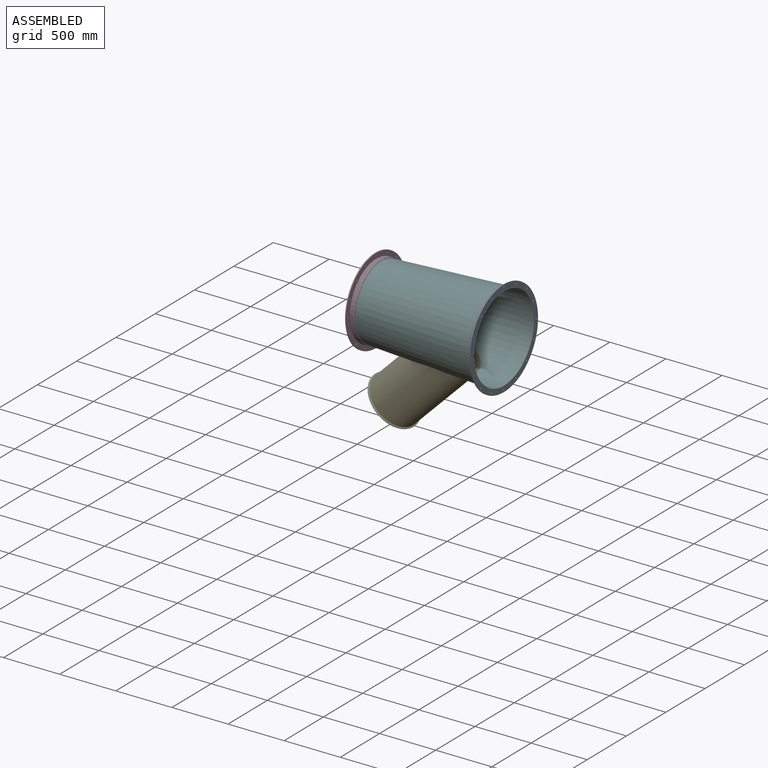
[diagram: assembled view]
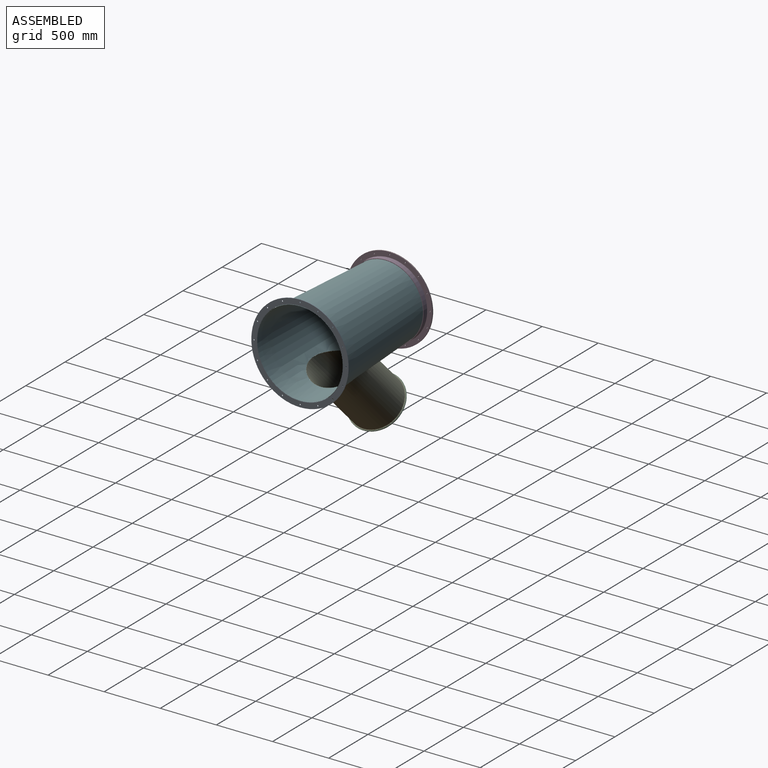
[diagram: assembled view, second angle]
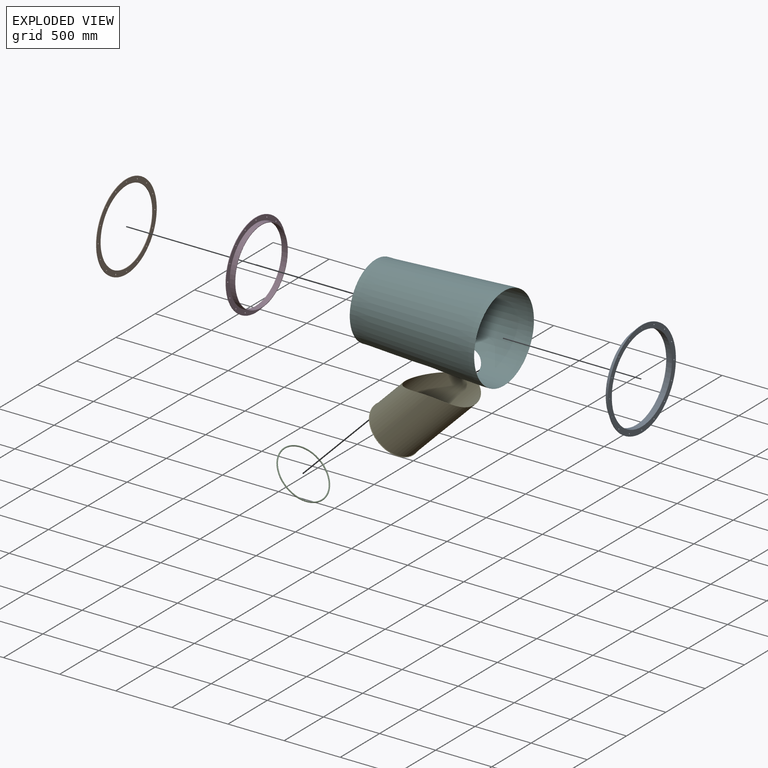
[diagram: exploded view]
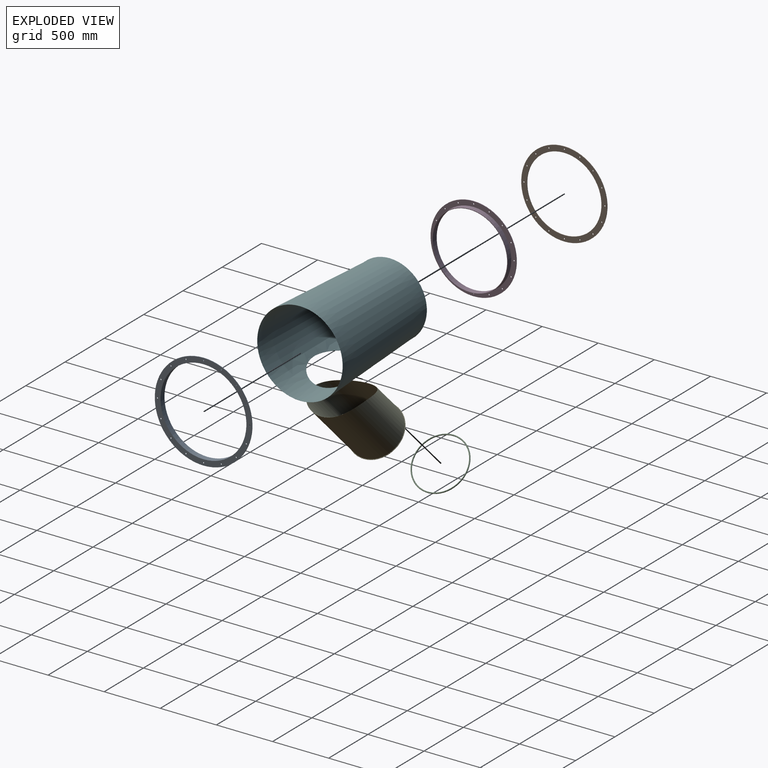
[diagram: exploded view, second angle]
ASSEMBLY  parts=6 mates=4
PART A: 22 faces, bbox 866.9x50.8x866.9 mm
  f0: cylinder r=5.56mm len=11.11mm, axis (0,1,0), area 166.3mm2, adj f17,f18
  f1: cylinder r=5.56mm len=11.11mm, axis (0,1,0), area 166.3mm2, adj f17,f18
  f2: cylinder r=5.56mm len=11.11mm, axis (0,1,0), area 166.3mm2, adj f17,f18
  f3: cylinder r=5.56mm len=11.11mm, axis (0,1,0), area 166.3mm2, adj f17,f18
  f4: cylinder r=5.56mm len=11.11mm, axis (0,1,0), area 166.3mm2, adj f17,f18
  f5: cylinder r=5.56mm len=11.11mm, axis (0,1,0), area 166.3mm2, adj f17,f18
  f6: cylinder r=5.56mm len=11.11mm, axis (0,1,0), area 166.3mm2, adj f17,f18
  f7: cylinder r=5.56mm len=11.11mm, axis (0,1,0), area 166.3mm2, adj f17,f18
  f8: cylinder r=5.56mm len=11.11mm, axis (0,1,0), area 166.3mm2, adj f17,f18
  f9: cylinder r=5.56mm len=11.11mm, axis (0,1,0), area 166.3mm2, adj f17,f18
  f10: cylinder r=5.56mm len=11.11mm, axis (0,1,0), area 166.3mm2, adj f17,f18
  f11: cylinder r=5.56mm len=11.11mm, axis (0,1,0), area 166.3mm2, adj f17,f18
  f12: cylinder r=5.56mm len=11.11mm, axis (0,1,0), area 166.3mm2, adj f17,f18
  f13: cylinder r=5.56mm len=11.11mm, axis (0,1,0), area 166.3mm2, adj f17,f18
  f14: cylinder r=5.56mm len=11.11mm, axis (0,1,0), area 166.3mm2, adj f17,f18
  f15: cylinder r=5.56mm len=11.11mm, axis (0,1,0), area 166.3mm2, adj f17,f18
  f16: cylinder r=433.45mm len=866.9mm, axis (0,1,0), area 12970.4mm2, adj f17,f18
  f17: plane 866.9x866.9mm, normal (0,-1,0), area 117170.7mm2, adj f0,f1,f2,f3,f4,f5,f6,f7
  f18: plane 866.9x866.9mm, normal (0,1,0), area 128692.3mm2, adj f0,f1,f2,f3,f4,f5,f6,f7
  f19: cylinder r=382.65mm len=765.3mm, axis (0,1,0), area 122136.8mm2, adj f18,f21
  f20: cylinder r=387.41mm len=774.83mm, axis (0,1,0), area 112064.1mm2, adj f17,f21
  f21: plane 774.83x774.83mm, normal (0,-1,0), area 11521.6mm2, adj f19,f20
PART B: 20 faces, bbox 765.3x765.3x4.8 mm
  f0: cylinder r=5.56mm len=11.11mm, axis (0,0,-1), area 166.3mm2, adj f18,f19
  f1: cylinder r=5.56mm len=11.11mm, axis (0,0,-1), area 166.3mm2, adj f18,f19
  f2: cylinder r=5.56mm len=11.11mm, axis (0,0,-1), area 166.3mm2, adj f18,f19
  f3: cylinder r=5.56mm len=11.11mm, axis (0,0,-1), area 166.3mm2, adj f18,f19
  f4: cylinder r=5.56mm len=11.11mm, axis (0,0,-1), area 166.3mm2, adj f18,f19
  f5: cylinder r=5.56mm len=11.11mm, axis (0,0,-1), area 166.3mm2, adj f18,f19
  f6: cylinder r=5.56mm len=11.11mm, axis (0,0,-1), area 166.3mm2, adj f18,f19
  f7: cylinder r=5.56mm len=11.11mm, axis (0,0,-1), area 166.3mm2, adj f18,f19
  f8: cylinder r=5.56mm len=11.11mm, axis (0,0,-1), area 166.3mm2, adj f18,f19
  f9: cylinder r=5.56mm len=11.11mm, axis (0,0,-1), area 166.3mm2, adj f18,f19
  f10: cylinder r=5.56mm len=11.11mm, axis (0,0,-1), area 166.3mm2, adj f18,f19
  f11: cylinder r=5.56mm len=11.11mm, axis (0,0,-1), area 166.3mm2, adj f18,f19
  f12: cylinder r=5.56mm len=11.11mm, axis (0,0,-1), area 166.3mm2, adj f18,f19
  f13: cylinder r=5.56mm len=11.11mm, axis (0,0,-1), area 166.3mm2, adj f18,f19
  f14: cylinder r=5.56mm len=11.11mm, axis (0,0,-1), area 166.3mm2, adj f18,f19
  f15: cylinder r=331.85mm len=663.7mm, axis (0,0,-1), area 9930.2mm2, adj f18,f19
  f16: cylinder r=5.56mm len=11.11mm, axis (0,0,-1), area 166.3mm2, adj f18,f19
  f17: cylinder r=382.65mm len=765.3mm, axis (0,0,-1), area 11450.3mm2, adj f18,f19
  f18: plane 765.3x765.3mm, normal (0,0,1), area 112477.7mm2, adj f0,f1,f2,f3,f4,f5,f6,f7
  f19: plane 765.3x765.3mm, normal (0,0,-1), area 112477.7mm2, adj f0,f1,f2,f3,f4,f5,f6,f7
PART C: 1 faces, bbox 518.7x518.7x11 mm
  f0: torus R=234.1mm, axis (0,0,-1), area 50830.4mm2
PART D: 22 faces, bbox 765.3x50.8x765.3 mm
  f0: cylinder r=5.56mm len=11.11mm, axis (0,1,0), area 166.3mm2, adj f17,f18
  f1: cylinder r=5.56mm len=11.11mm, axis (0,1,0), area 166.3mm2, adj f17,f18
  f2: cylinder r=5.56mm len=11.11mm, axis (0,1,0), area 166.3mm2, adj f17,f18
  f3: cylinder r=5.56mm len=11.11mm, axis (0,1,0), area 166.3mm2, adj f17,f18
  f4: cylinder r=5.56mm len=11.11mm, axis (0,1,0), area 166.3mm2, adj f17,f18
  f5: cylinder r=5.56mm len=11.11mm, axis (0,1,0), area 166.3mm2, adj f17,f18
  f6: cylinder r=5.56mm len=11.11mm, axis (0,1,0), area 166.3mm2, adj f17,f18
  f7: cylinder r=5.56mm len=11.11mm, axis (0,1,0), area 166.3mm2, adj f17,f18
  f8: cylinder r=5.56mm len=11.11mm, axis (0,1,0), area 166.3mm2, adj f17,f18
  f9: cylinder r=5.56mm len=11.11mm, axis (0,1,0), area 166.3mm2, adj f17,f18
  f10: cylinder r=5.56mm len=11.11mm, axis (0,1,0), area 166.3mm2, adj f17,f18
  f11: cylinder r=5.56mm len=11.11mm, axis (0,1,0), area 166.3mm2, adj f17,f18
  f12: cylinder r=5.56mm len=11.11mm, axis (0,1,0), area 166.3mm2, adj f17,f18
  f13: cylinder r=5.56mm len=11.11mm, axis (0,1,0), area 166.3mm2, adj f17,f18
  f14: cylinder r=5.56mm len=11.11mm, axis (0,1,0), area 166.3mm2, adj f17,f18
  f15: cylinder r=5.56mm len=11.11mm, axis (0,1,0), area 166.3mm2, adj f17,f18
  f16: cylinder r=382.65mm len=765.3mm, axis (0,1,0), area 11450.3mm2, adj f17,f18
  f17: plane 765.3x765.3mm, normal (0,-1,0), area 102476.2mm2, adj f0,f1,f2,f3,f4,f5,f6,f7
  f18: plane 765.3x765.3mm, normal (0,1,0), area 112477.7mm2, adj f0,f1,f2,f3,f4,f5,f6,f7
  f19: cylinder r=331.85mm len=663.7mm, axis (0,1,0), area 105922.1mm2, adj f18,f21
  f20: cylinder r=336.61mm len=673.23mm, axis (0,1,0), area 97369.5mm2, adj f17,f21
  f21: plane 673.23x673.23mm, normal (0,-1,0), area 10001.5mm2, adj f19,f20
PART E: 6 faces, bbox 885.8x504x885.8 mm
  f0: cylinder r=227.74mm len=867.44mm, axis (-0.71,0,-0.71), area 884358.4mm2, adj f4,f5
  f1: cylinder r=228.6mm len=869.22mm, axis (-0.71,0,-0.71), area 888267mm2, adj f2,f5
  f2: torus R=230.28mm, axis (-0.71,0,-0.71), area 13896.7mm2, adj f1,f3
  f3: cylinder r=228.85mm len=457.71mm, axis (-0.71,0,-0.71), area 1750.2mm2, adj f2,f4
  f4: torus R=230.28mm, axis (-0.71,0,-0.71), area 19536.2mm2, adj f0,f3
  f5: cone r=330.21mm half-angle=2.8deg, axis (1,0,0), area 1949.5mm2, adj f0,f1
PART F: 14 faces, bbox 1143x824.8x1076.2 mm
  f0: cylinder r=381mm len=762mm, axis (-1,0,0), area 12161mm2, adj f4,f12
  f1: cone r=330.21mm half-angle=2.8deg, axis (1,0,0), area 2094514.7mm2, adj f3,f10,f11
  f2: cone r=380.13mm half-angle=2.8deg, axis (1,0,0), area 2088050.4mm2, adj f6,f7,f11
  f3: torus R=374.65mm, axis (-1,0,0), area 740.9mm2, adj f1,f4
  f4: cylinder r=381mm len=762mm, axis (-1,0,0), area 109078.3mm2, adj f0,f3
  f5: cylinder r=380.14mm len=760.27mm, axis (-1,0,0), area 120964.4mm2, adj f6,f12
  f6: torus R=373.79mm, axis (-1,0,0), area 739.3mm2, adj f2,f5
  f7: torus R=335.69mm, axis (-1,0,0), area 640.5mm2, adj f2,f8
  f8: cylinder r=329.34mm len=658.67mm, axis (-1,0,0), area 104799.2mm2, adj f7,f13
  f9: cylinder r=330.2mm len=660.4mm, axis (-1,0,0), area 105074mm2, adj f10,f13
  f10: torus R=336.55mm, axis (-1,0,0), area 642.1mm2, adj f1,f9
  f11: cylinder r=228.6mm len=617.33mm, axis (-0.71,0,-0.71), area 1638.7mm2, adj f1,f2
  f12: plane 762x762mm, normal (1,0,0), area 2065mm2, adj f0,f5
  f13: plane 660.4x660.4mm, normal (-1,0,0), area 1789.4mm2, adj f8,f9
PLACE A rot(axis=(0,0,-1),90deg) t=(8.26,0,101.6)mm
PLACE B rot(axis=(0.71,0,-0.71),180deg) t=(-1134.74,0,101.6)mm
PLACE C rot(axis=(0,1,0),45deg) t=(-967.28,0,-657.17)mm
PLACE D rot(axis=(-0.71,0.71,0),180deg) t=(-1134.74,0,101.6)mm
PLACE E t=(-1134.74,0,-228.6)mm
PLACE F t=(-1134.74,0,-228.6)mm
MATE fastened D.f19 <-> F.f0  axis (-1,0,0) through (-1134.74,0,101.6)mm
MATE fastened A.f19 <-> F.f0  axis (1,0,0) through (8.26,0,101.6)mm
MATE fastened B.f15 <-> F.f0  axis (1,0,0) through (-1134.74,0,101.6)mm
MATE fastened C.f0 <-> E.f0  axis (0.71,0,0.71) through (-963.39,0,-653.28)mm
